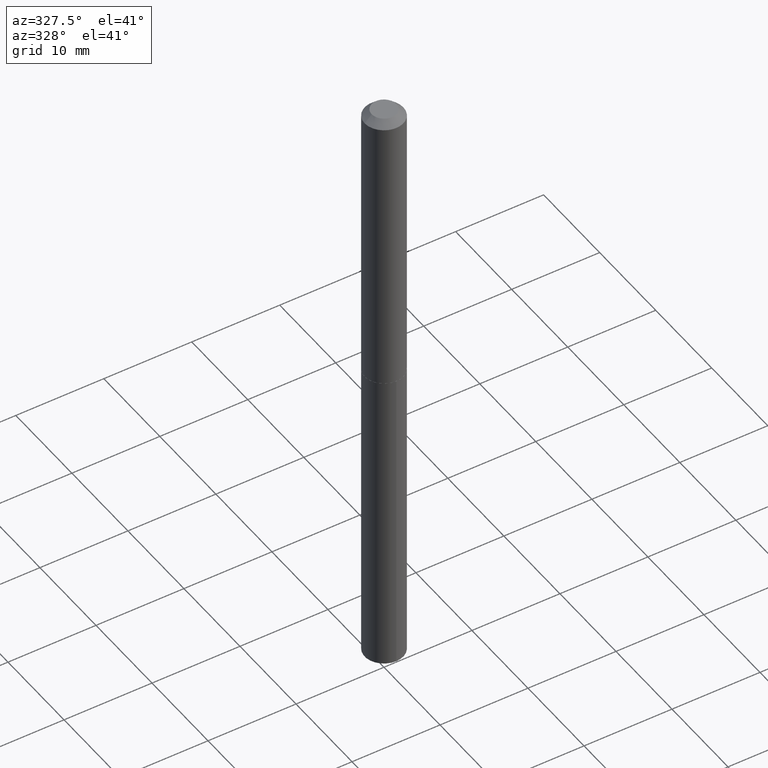
[diagram: clean part render]
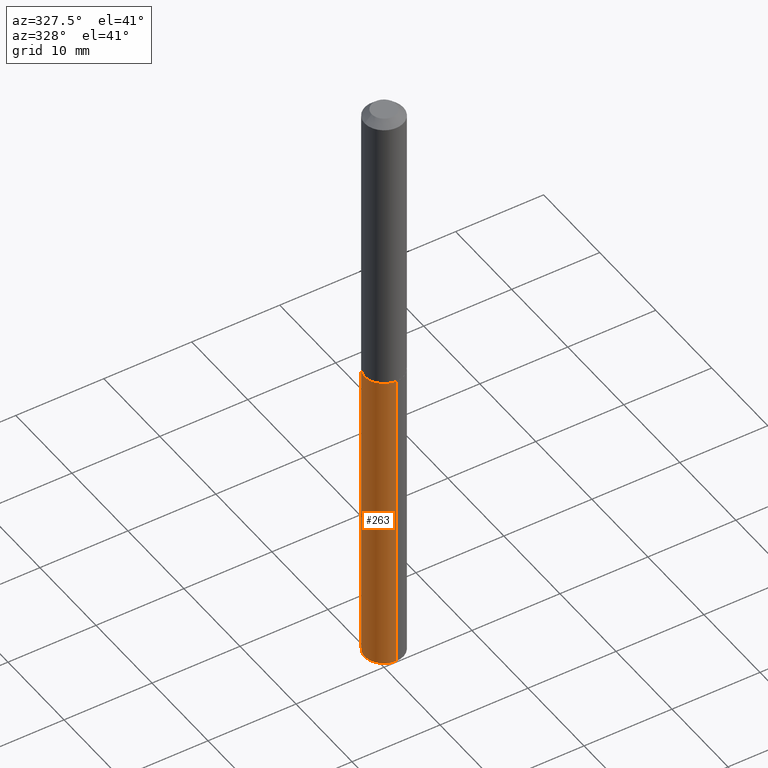
[diagram: same view with one face highlighted and labeled with its STEP entity id]
A machine part, auxiliary view. The second image highlights one B-rep face of the part: STEP entity #263.
In plain terms, the highlighted cylindrical surface (edge-blend (fillet) strip) has radius 2.1971 mm, axis along (-0, 0, 1).
Its self-contained STEP definition (entity closure, byte-faithful):
#6 = FACE_OUTER_BOUND ( 'NONE', #157, .T. ) ;
#7 = VERTEX_POINT ( 'NONE', #257 ) ;
#26 = DIRECTION ( 'NONE',  ( -2.445533427585270120E-29, 3.491388797320133343E-15, 1.000000000000000000 ) ) ;
#56 = CARTESIAN_POINT ( 'NONE',  ( 3.174218510428307267E-29, -4.531942777818403125E-15, -1.297999999999999821 ) ) ;
#68 = ORIENTED_EDGE ( 'NONE', *, *, #167, .T. ) ;
#71 = EDGE_CURVE ( 'NONE', #7, #236, #201, .T. ) ;
#74 = AXIS2_PLACEMENT_3D ( 'NONE', #245, #362, #222 ) ;
#89 = AXIS2_PLACEMENT_3D ( 'NONE', #56, #292, #379 ) ;
#93 = CARTESIAN_POINT ( 'NONE',  ( -6.040262716197958614E-16, -0.08650000000000938882, -2.698025556454115570 ) ) ;
#118 = CIRCLE ( 'NONE', #310, 0.08649999999999997968 ) ;
#123 = LINE ( 'NONE', #241, #258 ) ;
#126 = CYLINDRICAL_SURFACE ( 'NONE', #74, 0.08649999999999997968 ) ;
#156 = CARTESIAN_POINT ( 'NONE',  ( -6.040262716198300782E-16, -0.08650000000000450384, -1.297999999999999599 ) ) ;
#157 = EDGE_LOOP ( 'NONE', ( #190, #274, #68, #251 ) ) ;
#167 = EDGE_CURVE ( 'NONE', #223, #193, #123, .T. ) ;
#174 = VECTOR ( 'NONE', #287, 39.37007874015748143 ) ;
#184 = EDGE_CURVE ( 'NONE', #236, #193, #356, .T. ) ;
#189 = EDGE_CURVE ( 'NONE', #7, #223, #118, .T. ) ;
#190 = ORIENTED_EDGE ( 'NONE', *, *, #71, .F. ) ;
#193 = VERTEX_POINT ( 'NONE', #156 ) ;
#201 = LINE ( 'NONE', #230, #174 ) ;
#218 = CARTESIAN_POINT ( 'NONE',  ( 6.146194664325526821E-16, 0.08649999999999545552, -1.298000000000000265 ) ) ;
#222 = DIRECTION ( 'NONE',  ( -6.982962677686265922E-15, -1.000000000000000000, 3.158205773022270164E-15 ) ) ;
#223 = VERTEX_POINT ( 'NONE', #93 ) ;
#230 = CARTESIAN_POINT ( 'NONE',  ( 6.146194664325182681E-16, 0.08649999999999545552, -1.298000000000000265 ) ) ;
#236 = VERTEX_POINT ( 'NONE', #218 ) ;
#241 = CARTESIAN_POINT ( 'NONE',  ( -6.040262716198300782E-16, -0.08650000000000450384, -1.297999999999999599 ) ) ;
#245 = CARTESIAN_POINT ( 'NONE',  ( 3.174218510428307267E-29, -4.531942777818403125E-15, -1.297999999999999821 ) ) ;
#251 = ORIENTED_EDGE ( 'NONE', *, *, #184, .F. ) ;
#257 = CARTESIAN_POINT ( 'NONE',  ( 6.146194664325522877E-16, 0.08649999999999052891, -2.698025556454116458 ) ) ;
#258 = VECTOR ( 'NONE', #26, 39.37007874015748143 ) ;
#263 = ADVANCED_FACE ( 'NONE', ( #6 ), #126, .T. ) ;
#274 = ORIENTED_EDGE ( 'NONE', *, *, #189, .T. ) ;
#275 = DIRECTION ( 'NONE',  ( -6.982962677686265922E-15, -1.000000000000000000, 6.316411546044540328E-15 ) ) ;
#287 = DIRECTION ( 'NONE',  ( -2.445533427585270120E-29, 3.491388797320133343E-15, 1.000000000000000000 ) ) ;
#292 = DIRECTION ( 'NONE',  ( -2.445533427585269840E-29, 3.491388797320132949E-15, 1.000000000000000000 ) ) ;
#310 = AXIS2_PLACEMENT_3D ( 'NONE', #351, #359, #275 ) ;
#351 = CARTESIAN_POINT ( 'NONE',  ( 6.598027808210516184E-29, -9.419976321584187663E-15, -2.698025556454116014 ) ) ;
#356 = CIRCLE ( 'NONE', #89, 0.08649999999999997968 ) ;
#359 = DIRECTION ( 'NONE',  ( -2.445533427585269840E-29, 3.491388797320132949E-15, 1.000000000000000000 ) ) ;
#362 = DIRECTION ( 'NONE',  ( -2.445533427585269840E-29, 3.491388797320132949E-15, 1.000000000000000000 ) ) ;
#379 = DIRECTION ( 'NONE',  ( -6.982962677686265922E-15, -1.000000000000000000, 3.158205773022270164E-15 ) ) ;